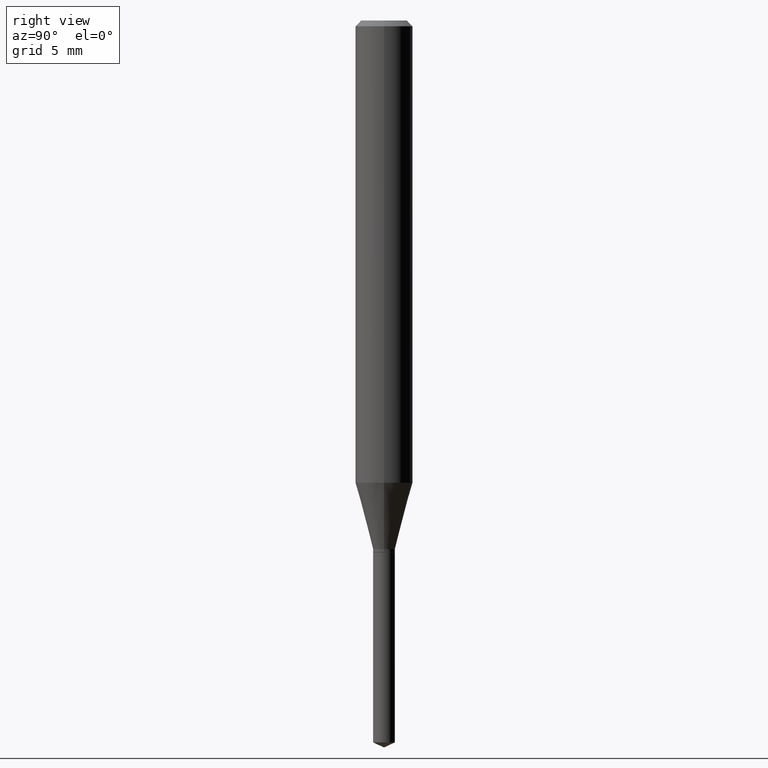
[diagram: clean part render]
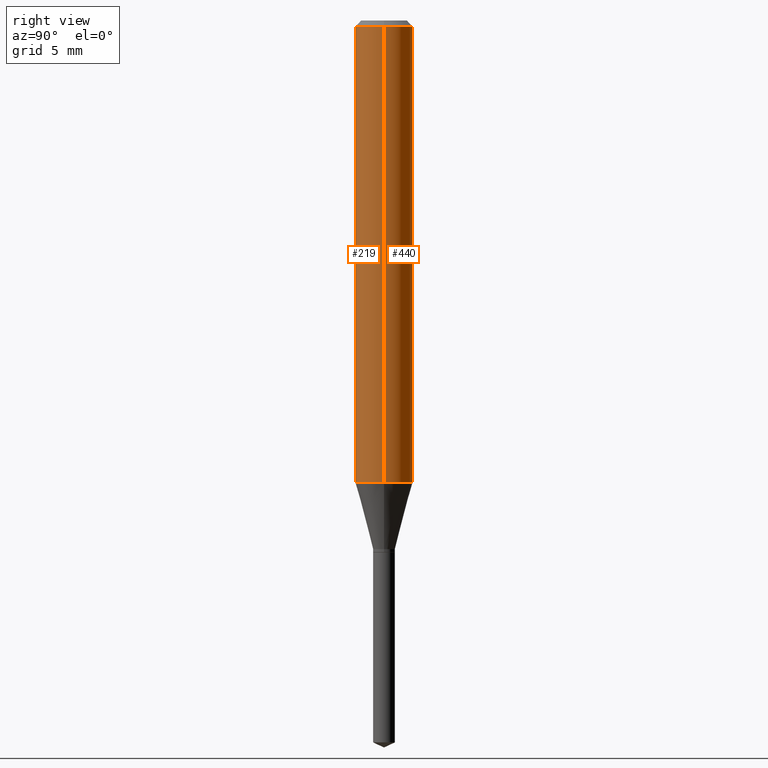
[diagram: same view with one multi-face feature highlighted, each face labeled with its STEP entity id]
A machine part, right view. The highlighted faces form ONE feature: a constant-radius fillet chain: 2 tangent blend faces with common blend radius 1.4999 mm. The faces share edges in the B-rep.
Their STEP definitions:
[1] entity #440 (Cylinder):
#13 = CARTESIAN_POINT ( 'NONE',  ( 0.05905000000000006771, -4.123439461173745257E-16, 2.879382386107503723E-30 ) ) ;
#17 = EDGE_LOOP ( 'NONE', ( #224, #209, #259, #101 ) ) ;
#33 = EDGE_CURVE ( 'NONE', #52, #223, #484, .T. ) ;
#34 = CYLINDRICAL_SURFACE ( 'NONE', #141, 0.05905000000000006771 ) ;
#47 = LINE ( 'NONE', #476, #488 ) ;
#52 = VERTEX_POINT ( 'NONE', #480 ) ;
#60 = AXIS2_PLACEMENT_3D ( 'NONE', #453, #215, #180 ) ;
#80 = VERTEX_POINT ( 'NONE', #352 ) ;
#91 = CARTESIAN_POINT ( 'NONE',  ( -0.05905000000000011628, -2.901545796468403785E-15, -0.9512069404429788211 ) ) ;
#101 = ORIENTED_EDGE ( 'NONE', *, *, #261, .F. ) ;
#117 = EDGE_CURVE ( 'NONE', #283, #80, #383, .T. ) ;
#130 = EDGE_CURVE ( 'NONE', #223, #80, #47, .T. ) ;
#131 = DIRECTION ( 'NONE',  ( -2.445468806185136877E-29, 3.491481338843145188E-15, 1.000000000000000000 ) ) ;
#141 = AXIS2_PLACEMENT_3D ( 'NONE', #146, #292, #193 ) ;
#146 = CARTESIAN_POINT ( 'NONE',  ( 0.000000000000000000, 0.000000000000000000, 0.000000000000000000 ) ) ;
#180 = DIRECTION ( 'NONE',  ( 1.000000000000000000, -6.982962677686266711E-15, 0.000000000000000000 ) ) ;
#193 = DIRECTION ( 'NONE',  ( 1.000000000000000000, -6.982962677686266711E-15, 4.876176775795936353E-29 ) ) ;
#198 = DIRECTION ( 'NONE',  ( 1.000000000000000000, -6.982962677686268288E-15, 0.000000000000000000 ) ) ;
#209 = ORIENTED_EDGE ( 'NONE', *, *, #130, .T. ) ;
#215 = DIRECTION ( 'NONE',  ( -2.445468806185136597E-29, 3.491481338843145583E-15, 1.000000000000000000 ) ) ;
#223 = VERTEX_POINT ( 'NONE', #91 ) ;
#224 = ORIENTED_EDGE ( 'NONE', *, *, #33, .T. ) ;
#243 = DIRECTION ( 'NONE',  ( -2.445468806185136877E-29, 3.491481338843145188E-15, 1.000000000000000000 ) ) ;
#259 = ORIENTED_EDGE ( 'NONE', *, *, #117, .F. ) ;
#261 = EDGE_CURVE ( 'NONE', #52, #283, #432, .T. ) ;
#271 = CARTESIAN_POINT ( 'NONE',  ( 0.05905000000000000526, -4.535783407291119586E-16, -0.01181000000000007565 ) ) ;
#283 = VERTEX_POINT ( 'NONE', #271 ) ;
#292 = DIRECTION ( 'NONE',  ( -2.445468806185136597E-29, 3.491481338843145583E-15, 1.000000000000000000 ) ) ;
#301 = VECTOR ( 'NONE', #243, 39.37007874015748143 ) ;
#306 = DIRECTION ( 'NONE',  ( -2.445468806185136597E-29, 3.491481338843145583E-15, 1.000000000000000000 ) ) ;
#352 = CARTESIAN_POINT ( 'NONE',  ( -0.05905000000000000526, -1.261602352806900813E-15, -0.01181000000000007565 ) ) ;
#383 = CIRCLE ( 'NONE', #398, 0.05905000000000000526 ) ;
#398 = AXIS2_PLACEMENT_3D ( 'NONE', #437, #306, #198 ) ;
#412 = FACE_OUTER_BOUND ( 'NONE', #17, .T. ) ;
#432 = LINE ( 'NONE', #13, #301 ) ;
#437 = CARTESIAN_POINT ( 'NONE',  ( 2.888098660104664642E-31, -4.123439461173780879E-17, -0.01181000000000007565 ) ) ;
#440 = ADVANCED_FACE ( 'NONE', ( #412 ), #34, .T. ) ;
#453 = CARTESIAN_POINT ( 'NONE',  ( 2.326146901080107972E-29, -3.321121281934744067E-15, -0.9512069404429788211 ) ) ;
#476 = CARTESIAN_POINT ( 'NONE',  ( -0.05905000000000006771, 4.195754854663396409E-16, -2.904631170795525045E-30 ) ) ;
#480 = CARTESIAN_POINT ( 'NONE',  ( 0.05905000000000011628, -3.733465228052118987E-15, -0.9512069404429788211 ) ) ;
#484 = CIRCLE ( 'NONE', #60, 0.05905000000000011628 ) ;
#488 = VECTOR ( 'NONE', #131, 39.37007874015748143 ) ;
[2] entity #219 (Cylinder):
#5 = EDGE_LOOP ( 'NONE', ( #41, #409, #341, #300 ) ) ;
#10 = EDGE_CURVE ( 'NONE', #80, #283, #349, .T. ) ;
#13 = CARTESIAN_POINT ( 'NONE',  ( 0.05905000000000006771, -4.123439461173745257E-16, 2.879382386107503723E-30 ) ) ;
#19 = DIRECTION ( 'NONE',  ( 1.000000000000000000, -6.982962677686266711E-15, 4.876176775795936353E-29 ) ) ;
#41 = ORIENTED_EDGE ( 'NONE', *, *, #130, .F. ) ;
#47 = LINE ( 'NONE', #476, #488 ) ;
#52 = VERTEX_POINT ( 'NONE', #480 ) ;
#80 = VERTEX_POINT ( 'NONE', #352 ) ;
#91 = CARTESIAN_POINT ( 'NONE',  ( -0.05905000000000011628, -2.901545796468403785E-15, -0.9512069404429788211 ) ) ;
#94 = EDGE_CURVE ( 'NONE', #223, #52, #109, .T. ) ;
#109 = CIRCLE ( 'NONE', #314, 0.05905000000000011628 ) ;
#115 = AXIS2_PLACEMENT_3D ( 'NONE', #181, #425, #19 ) ;
#130 = EDGE_CURVE ( 'NONE', #223, #80, #47, .T. ) ;
#131 = DIRECTION ( 'NONE',  ( -2.445468806185136877E-29, 3.491481338843145188E-15, 1.000000000000000000 ) ) ;
#181 = CARTESIAN_POINT ( 'NONE',  ( 0.000000000000000000, 0.000000000000000000, 0.000000000000000000 ) ) ;
#217 = DIRECTION ( 'NONE',  ( -2.445468806185136597E-29, 3.491481338843145583E-15, 1.000000000000000000 ) ) ;
#219 = ADVANCED_FACE ( 'NONE', ( #455 ), #364, .T. ) ;
#223 = VERTEX_POINT ( 'NONE', #91 ) ;
#243 = DIRECTION ( 'NONE',  ( -2.445468806185136877E-29, 3.491481338843145188E-15, 1.000000000000000000 ) ) ;
#261 = EDGE_CURVE ( 'NONE', #52, #283, #432, .T. ) ;
#270 = CARTESIAN_POINT ( 'NONE',  ( 2.326146901080107972E-29, -3.321121281934744067E-15, -0.9512069404429788211 ) ) ;
#271 = CARTESIAN_POINT ( 'NONE',  ( 0.05905000000000000526, -4.535783407291119586E-16, -0.01181000000000007565 ) ) ;
#283 = VERTEX_POINT ( 'NONE', #271 ) ;
#300 = ORIENTED_EDGE ( 'NONE', *, *, #10, .F. ) ;
#301 = VECTOR ( 'NONE', #243, 39.37007874015748143 ) ;
#314 = AXIS2_PLACEMENT_3D ( 'NONE', #270, #434, #466 ) ;
#319 = CARTESIAN_POINT ( 'NONE',  ( 2.888098660104664642E-31, -4.123439461173780879E-17, -0.01181000000000007565 ) ) ;
#324 = AXIS2_PLACEMENT_3D ( 'NONE', #319, #217, #334 ) ;
#334 = DIRECTION ( 'NONE',  ( 1.000000000000000000, -6.982962677686268288E-15, 0.000000000000000000 ) ) ;
#341 = ORIENTED_EDGE ( 'NONE', *, *, #261, .T. ) ;
#349 = CIRCLE ( 'NONE', #324, 0.05905000000000000526 ) ;
#352 = CARTESIAN_POINT ( 'NONE',  ( -0.05905000000000000526, -1.261602352806900813E-15, -0.01181000000000007565 ) ) ;
#364 = CYLINDRICAL_SURFACE ( 'NONE', #115, 0.05905000000000006771 ) ;
#409 = ORIENTED_EDGE ( 'NONE', *, *, #94, .T. ) ;
#425 = DIRECTION ( 'NONE',  ( -2.445468806185136597E-29, 3.491481338843145583E-15, 1.000000000000000000 ) ) ;
#432 = LINE ( 'NONE', #13, #301 ) ;
#434 = DIRECTION ( 'NONE',  ( -2.445468806185136597E-29, 3.491481338843145583E-15, 1.000000000000000000 ) ) ;
#455 = FACE_OUTER_BOUND ( 'NONE', #5, .T. ) ;
#466 = DIRECTION ( 'NONE',  ( 1.000000000000000000, -6.982962677686266711E-15, 0.000000000000000000 ) ) ;
#476 = CARTESIAN_POINT ( 'NONE',  ( -0.05905000000000006771, 4.195754854663396409E-16, -2.904631170795525045E-30 ) ) ;
#480 = CARTESIAN_POINT ( 'NONE',  ( 0.05905000000000011628, -3.733465228052118987E-15, -0.9512069404429788211 ) ) ;
#488 = VECTOR ( 'NONE', #131, 39.37007874015748143 ) ;